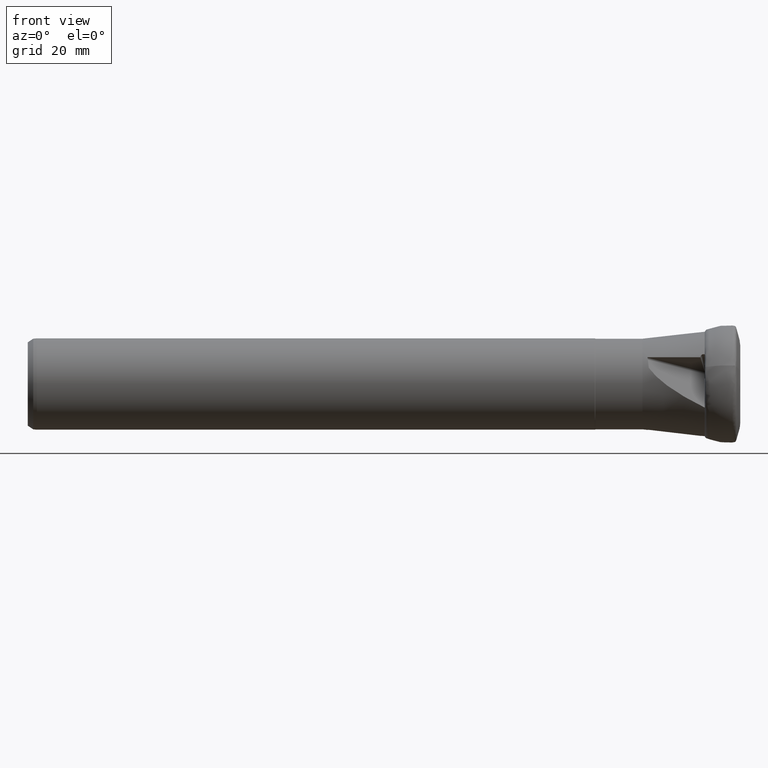
[diagram: clean part render]
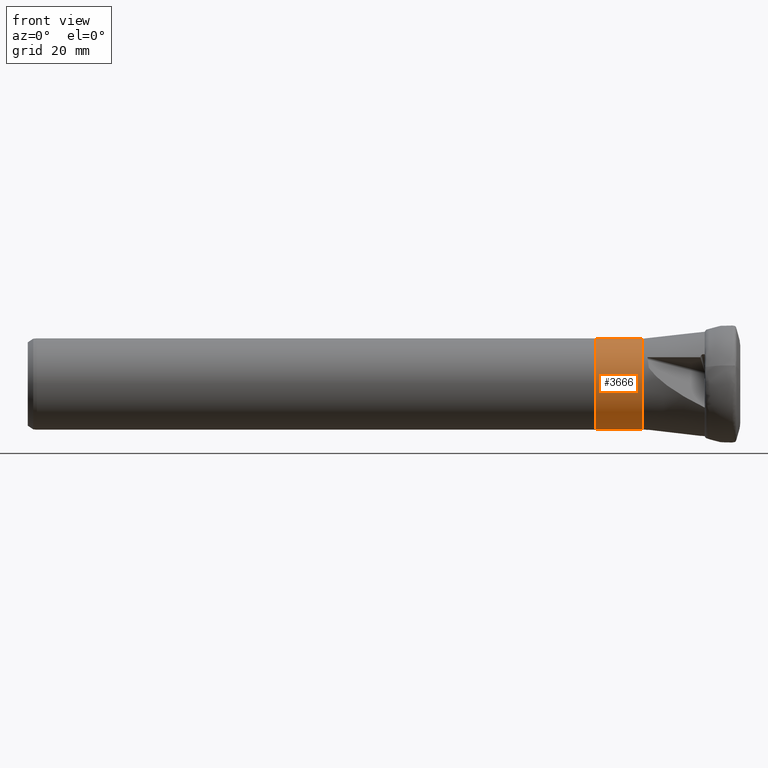
[diagram: same view with one face highlighted and labeled with its STEP entity id]
A machine part, front view. The second image highlights one B-rep face of the part: STEP entity #3666.
In plain terms, the highlighted cylindrical surface (bore or boss wall) has radius 12.4 mm, axis along (1, -0, -0).
Its self-contained STEP definition (entity closure, byte-faithful):
#12 = AXIS2_PLACEMENT_3D ( 'NONE', #1177, #3421, #1516 ) ;
#125 = DIRECTION ( 'NONE',  ( 0.0000000000000000000, 0.0000000000000000000, -1.000000000000000000 ) ) ;
#238 = CIRCLE ( 'NONE', #12, 12.39999999999999900 ) ;
#1091 = CARTESIAN_POINT ( 'NONE',  ( -25.80000000000000100, 0.0000000000000000000, -12.39999999999999900 ) ) ;
#1177 = CARTESIAN_POINT ( 'NONE',  ( -25.80000000000000100, 0.0000000000000000000, 0.0000000000000000000 ) ) ;
#1193 = ORIENTED_EDGE ( 'NONE', *, *, #3225, .F. ) ;
#1516 = DIRECTION ( 'NONE',  ( 0.0000000000000000000, 0.0000000000000000000, -1.000000000000000000 ) ) ;
#2015 = AXIS2_PLACEMENT_3D ( 'NONE', #3967, #2059, #125 ) ;
#2059 = DIRECTION ( 'NONE',  ( 1.000000000000000000, -0.0000000000000000000, -0.0000000000000000000 ) ) ;
#2366 = DIRECTION ( 'NONE',  ( 1.000000000000000000, -0.0000000000000000000, -0.0000000000000000000 ) ) ;
#2452 = FACE_OUTER_BOUND ( 'NONE', #2817, .T. ) ;
#2545 = FACE_OUTER_BOUND ( 'NONE', #3219, .T. ) ;
#2755 = AXIS2_PLACEMENT_3D ( 'NONE', #3949, #2366, #3013 ) ;
#2817 = EDGE_LOOP ( 'NONE', ( #3355 ) ) ;
#2852 = VERTEX_POINT ( 'NONE', #3338 ) ;
#3013 = DIRECTION ( 'NONE',  ( 0.0000000000000000000, 0.0000000000000000000, -1.000000000000000000 ) ) ;
#3052 = CIRCLE ( 'NONE', #2015, 12.39999999999999500 ) ;
#3192 = CYLINDRICAL_SURFACE ( 'NONE', #2755, 12.39999999999999700 ) ;
#3219 = EDGE_LOOP ( 'NONE', ( #1193 ) ) ;
#3225 = EDGE_CURVE ( 'NONE', #3677, #3677, #238, .T. ) ;
#3338 = CARTESIAN_POINT ( 'NONE',  ( -38.70358983848622400, 0.0000000000000000000, -12.39999999999999500 ) ) ;
#3355 = ORIENTED_EDGE ( 'NONE', *, *, #4126, .T. ) ;
#3421 = DIRECTION ( 'NONE',  ( 1.000000000000000000, -0.0000000000000000000, -0.0000000000000000000 ) ) ;
#3666 = ADVANCED_FACE ( 'NONE', ( #2452, #2545 ), #3192, .T. ) ;
#3677 = VERTEX_POINT ( 'NONE', #1091 ) ;
#3949 = CARTESIAN_POINT ( 'NONE',  ( 0.0000000000000000000, 0.0000000000000000000, 0.0000000000000000000 ) ) ;
#3967 = CARTESIAN_POINT ( 'NONE',  ( -38.70358983848622400, 0.0000000000000000000, 0.0000000000000000000 ) ) ;
#4126 = EDGE_CURVE ( 'NONE', #2852, #2852, #3052, .T. ) ;